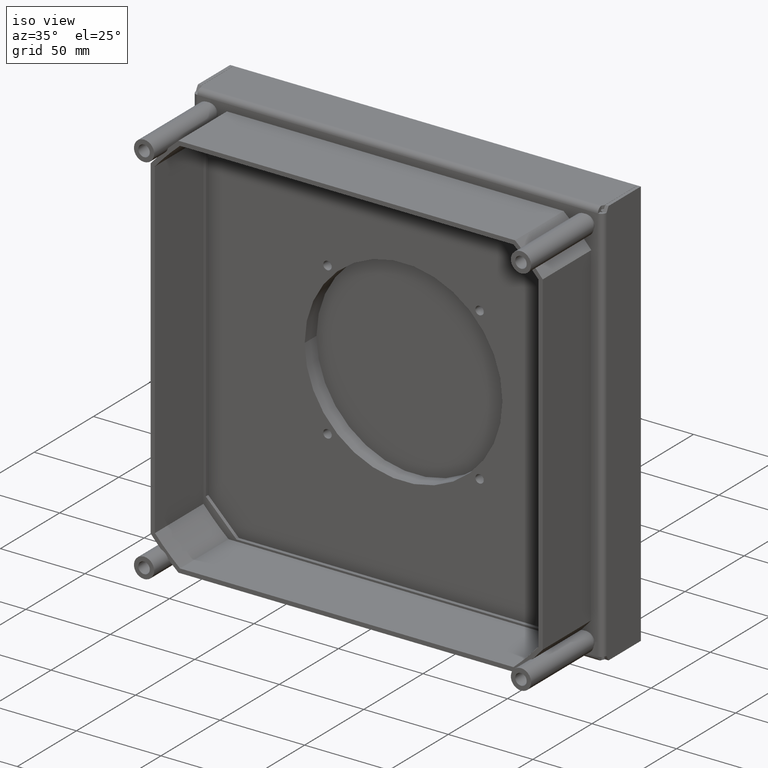
[diagram: clean part render]
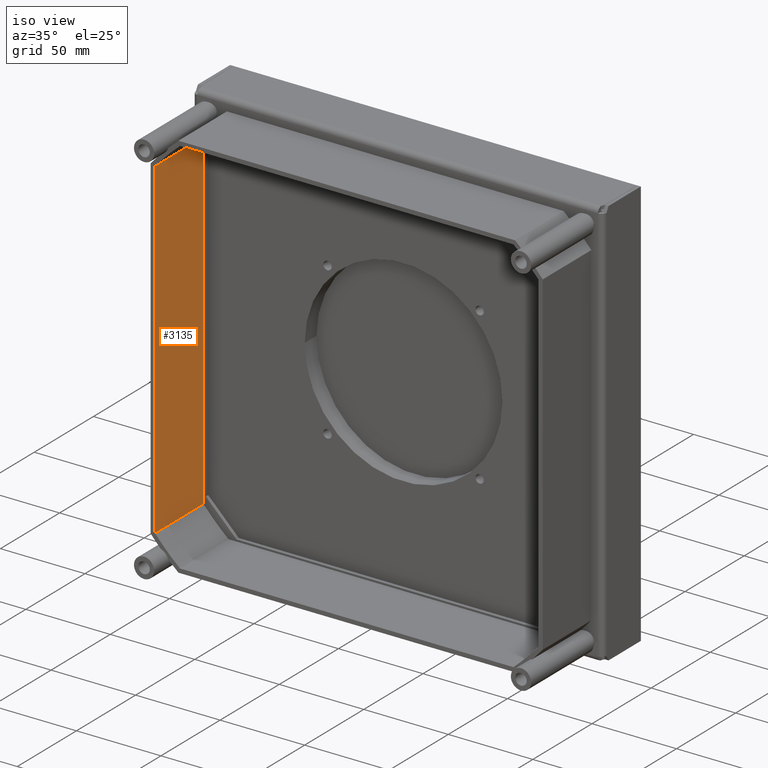
[diagram: same view with one face highlighted and labeled with its STEP entity id]
A machine part, iso view. The second image highlights one B-rep face of the part: STEP entity #3135.
In plain terms, the highlighted planar face has unit normal (1, 0, 0).
Its self-contained STEP definition (entity closure, byte-faithful):
#2810=DIRECTION('',(0.E0,-1.E0,0.E0));
#2811=VECTOR('',#2810,4.1E1);
#2812=CARTESIAN_POINT('',(-1.135E2,0.E0,9.807012796973E1));
#2813=LINE('',#2812,#2811);
#2814=DIRECTION('',(0.E0,0.E0,1.E0));
#2815=VECTOR('',#2814,1.961402559395E2);
#2816=CARTESIAN_POINT('',(-1.135E2,-4.1E1,-9.807012796973E1));
#2817=LINE('',#2816,#2815);
#2818=DIRECTION('',(0.E0,0.E0,-1.E0));
#2819=VECTOR('',#2818,1.961402559395E2);
#2820=CARTESIAN_POINT('',(-1.135E2,0.E0,9.807012796973E1));
#2821=LINE('',#2820,#2819);
#2822=DIRECTION('',(0.E0,-1.E0,0.E0));
#2823=VECTOR('',#2822,4.1E1);
#2824=CARTESIAN_POINT('',(-1.135E2,0.E0,-9.807012796973E1));
#2825=LINE('',#2824,#2823);
#2890=CARTESIAN_POINT('',(-1.135E2,-4.1E1,-9.807012796973E1));
#2891=CARTESIAN_POINT('',(-1.135E2,-4.1E1,9.807012796973E1));
#2892=VERTEX_POINT('',#2890);
#2893=VERTEX_POINT('',#2891);
#2894=CARTESIAN_POINT('',(-1.135E2,0.E0,9.807012796973E1));
#2895=CARTESIAN_POINT('',(-1.135E2,0.E0,-9.807012796973E1));
#2896=VERTEX_POINT('',#2894);
#2897=VERTEX_POINT('',#2895);
#3123=CARTESIAN_POINT('',(-1.135E2,0.E0,0.E0));
#3124=DIRECTION('',(1.E0,0.E0,0.E0));
#3125=DIRECTION('',(0.E0,0.E0,-1.E0));
#3126=AXIS2_PLACEMENT_3D('',#3123,#3124,#3125);
#3127=PLANE('',#3126);
#3128=ORIENTED_EDGE('',*,*,#3037,.T.);
#3129=ORIENTED_EDGE('',*,*,#3116,.F.);
#3130=ORIENTED_EDGE('',*,*,#2981,.T.);
#3132=ORIENTED_EDGE('',*,*,#3131,.T.);
#3133=EDGE_LOOP('',(#3128,#3129,#3130,#3132));
#3134=FACE_OUTER_BOUND('',#3133,.F.);
#2981=EDGE_CURVE('',#2896,#2897,#2821,.T.);
#3037=EDGE_CURVE('',#2892,#2893,#2817,.T.);
#3116=EDGE_CURVE('',#2896,#2893,#2813,.T.);
#3131=EDGE_CURVE('',#2897,#2892,#2825,.T.);
#3135=ADVANCED_FACE('',(#3134),#3127,.T.);